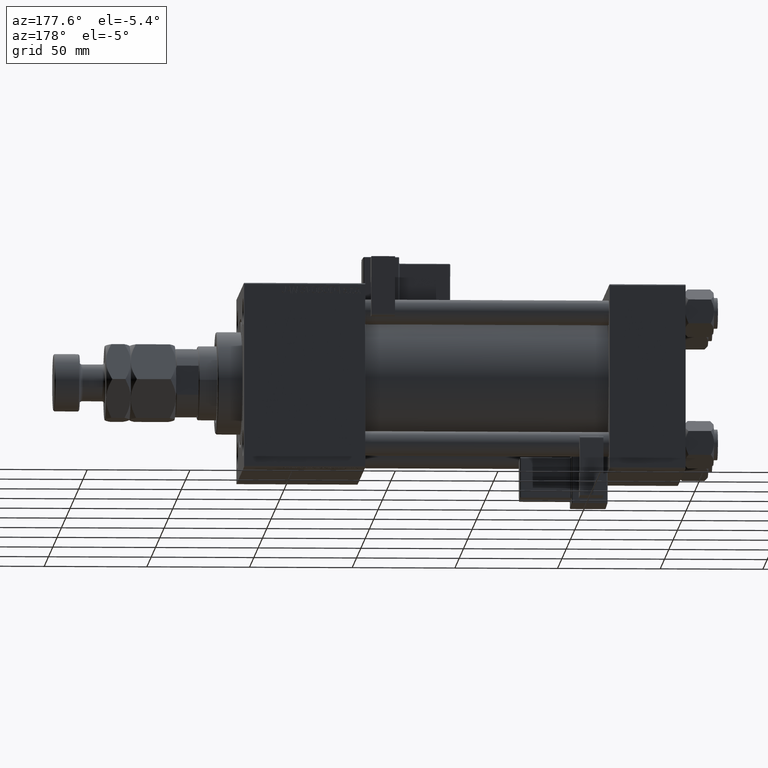
[diagram: clean part render]
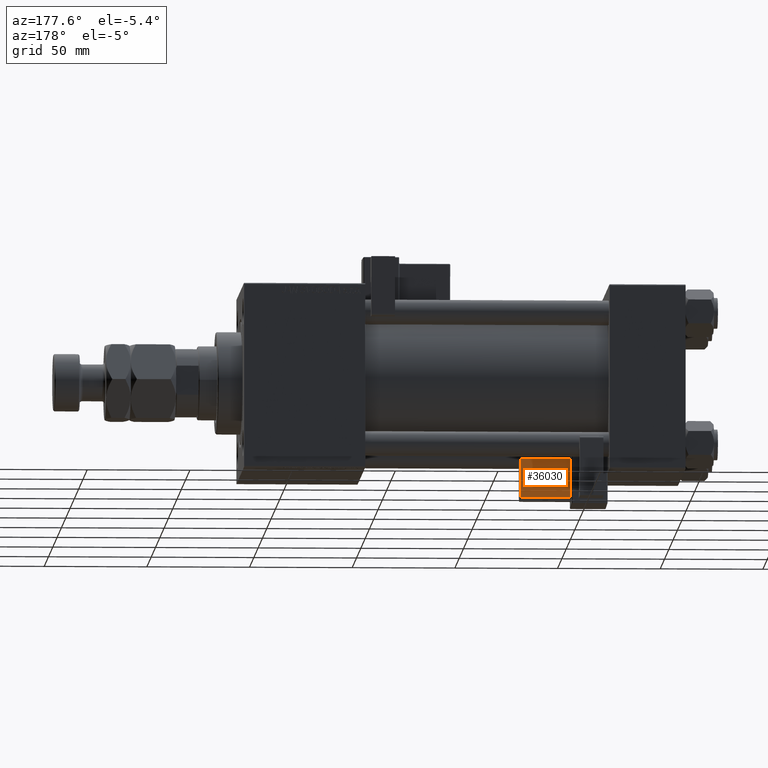
[diagram: same view with one face highlighted and labeled with its STEP entity id]
A machine part, auxiliary view. The second image highlights one B-rep face of the part: STEP entity #36030.
In plain terms, the highlighted planar face has unit normal (0, -0.9994, -0.0353).
Its self-contained STEP definition (entity closure, byte-faithful):
#3558 = DIRECTION ( 'NONE',  ( -1.000000000000000000, 0.000000000000000000, -1.334402673828313339E-16 ) ) ;
#6749 = EDGE_CURVE ( 'NONE', #46641, #47164, #31737, .T. ) ;
#6883 = LINE ( 'NONE', #53931, #21317 ) ;
#7321 = AXIS2_PLACEMENT_3D ( 'NONE', #26177, #38217, #9203 ) ;
#8942 = LINE ( 'NONE', #13319, #25687 ) ;
#9203 = DIRECTION ( 'NONE',  ( 0.000000000000000000, -0.000000000000000000, -1.000000000000000000 ) ) ;
#10059 = CARTESIAN_POINT ( 'NONE',  ( 9.250000000000005329, -21.24999999999999645, 2.500000000000005773 ) ) ;
#10481 = VECTOR ( 'NONE', #48436, 1000.000000000000000 ) ;
#11180 = ORIENTED_EDGE ( 'NONE', *, *, #6749, .T. ) ;
#12186 = ORIENTED_EDGE ( 'NONE', *, *, #16086, .T. ) ;
#12241 = DIRECTION ( 'NONE',  ( 1.000000000000000000, -0.000000000000000000, 1.334402673828313339E-16 ) ) ;
#13319 = CARTESIAN_POINT ( 'NONE',  ( 33.75000000000000000, -21.24999999999999645, 21.50000000000000711 ) ) ;
#13691 = CARTESIAN_POINT ( 'NONE',  ( 9.250000000000001776, -21.24999999999999645, 21.50000000000000355 ) ) ;
#16086 = EDGE_CURVE ( 'NONE', #36864, #46641, #6883, .T. ) ;
#16480 = EDGE_CURVE ( 'NONE', #47164, #42840, #8942, .T. ) ;
#16517 = CARTESIAN_POINT ( 'NONE',  ( 33.25000000000000000, -21.24999999999999645, 2.000000000000010214 ) ) ;
#21317 = VECTOR ( 'NONE', #3558, 1000.000000000000000 ) ;
#21794 = FACE_OUTER_BOUND ( 'NONE', #37068, .T. ) ;
#25687 = VECTOR ( 'NONE', #12241, 1000.000000000000000 ) ;
#26177 = CARTESIAN_POINT ( 'NONE',  ( 33.75000000000000000, -21.24999999999999645, 22.00000000000001066 ) ) ;
#31120 = CARTESIAN_POINT ( 'NONE',  ( 33.25000000000000000, -21.24999999999999645, 2.500000000000009326 ) ) ;
#31737 = LINE ( 'NONE', #52012, #10481 ) ;
#36030 = ADVANCED_FACE ( 'NONE', ( #21794 ), #50821, .F. ) ;
#36864 = VERTEX_POINT ( 'NONE', #31120 ) ;
#37068 = EDGE_LOOP ( 'NONE', ( #12186, #11180, #41307, #46108 ) ) ;
#37331 = LINE ( 'NONE', #16517, #46628 ) ;
#38217 = DIRECTION ( 'NONE',  ( 0.000000000000000000, -1.000000000000000000, 0.000000000000000000 ) ) ;
#39656 = CARTESIAN_POINT ( 'NONE',  ( 33.25000000000000000, -21.24999999999999645, 21.50000000000000711 ) ) ;
#41307 = ORIENTED_EDGE ( 'NONE', *, *, #16480, .T. ) ;
#42840 = VERTEX_POINT ( 'NONE', #39656 ) ;
#46108 = ORIENTED_EDGE ( 'NONE', *, *, #48894, .T. ) ;
#46628 = VECTOR ( 'NONE', #49929, 1000.000000000000000 ) ;
#46641 = VERTEX_POINT ( 'NONE', #10059 ) ;
#47164 = VERTEX_POINT ( 'NONE', #13691 ) ;
#48436 = DIRECTION ( 'NONE',  ( -1.334402673828313339E-16, 0.000000000000000000, 1.000000000000000000 ) ) ;
#48894 = EDGE_CURVE ( 'NONE', #42840, #36864, #37331, .T. ) ;
#49929 = DIRECTION ( 'NONE',  ( 1.734723475976807587E-16, -0.000000000000000000, -1.000000000000000000 ) ) ;
#50821 = PLANE ( 'NONE',  #7321 ) ;
#52012 = CARTESIAN_POINT ( 'NONE',  ( 9.250000000000001776, -21.24999999999999645, 22.00000000000000711 ) ) ;
#53931 = CARTESIAN_POINT ( 'NONE',  ( 33.75000000000000000, -21.24999999999999645, 2.500000000000009326 ) ) ;